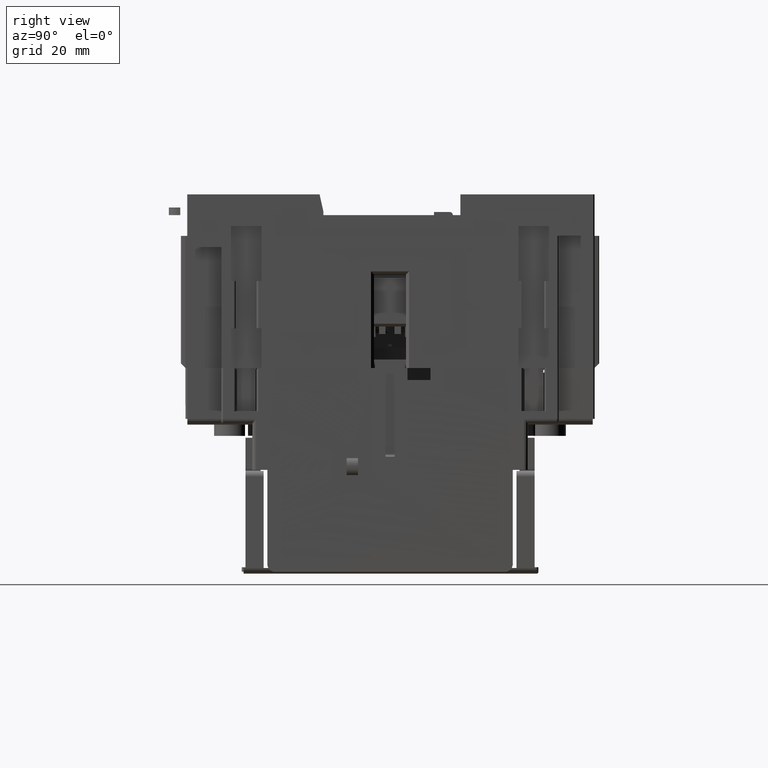
[diagram: clean part render]
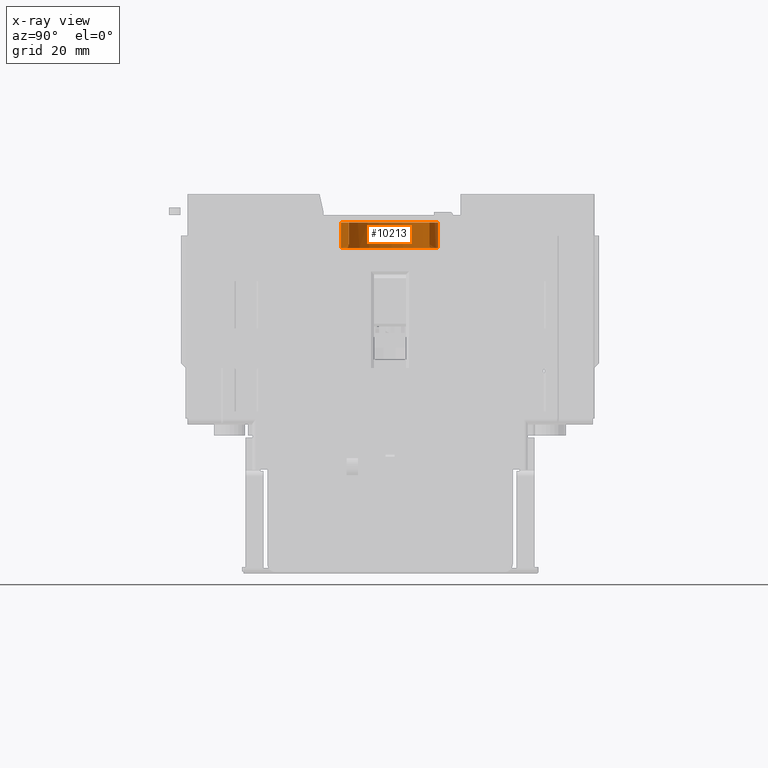
[diagram: x-ray — body ghosted, one internal face saturated and labeled with its STEP entity id]
A machine part, right view, then the same camera in x-ray: the body is ghosted and one INTERNAL B-rep face — a face not visible from any outside direction — is saturated and labeled: STEP entity #10213.
In plain terms, the highlighted cylindrical surface (partial cylindrical patch) has radius 12.924 mm, axis along (0, 0, 1).
Its self-contained STEP definition (entity closure, byte-faithful):
#4544=CARTESIAN_POINT('',(1.015357243668E2,4.144211797630E2,-2.200392864144E1));
#4545=DIRECTION('',(0.E0,0.E0,1.E0));
#4546=DIRECTION('',(5.797465627216E-1,8.147968599672E-1,0.E0));
#4547=AXIS2_PLACEMENT_3D('',#4544,#4545,#4546);
#4549=CARTESIAN_POINT('',(1.015357243668E2,4.144211797630E2,-2.200392864144E1));
#4550=DIRECTION('',(0.E0,0.E0,1.E0));
#4551=DIRECTION('',(-5.502016192554E-1,8.350318426077E-1,0.E0));
#4552=AXIS2_PLACEMENT_3D('',#4549,#4550,#4551);
#4880=CARTESIAN_POINT('',(1.015357243668E2,4.144211797630E2,-2.874944934997E1));
#4881=DIRECTION('',(0.E0,0.E0,-1.E0));
#4882=DIRECTION('',(4.839255634969E-1,-8.751091640443E-1,0.E0));
#4883=AXIS2_PLACEMENT_3D('',#4880,#4881,#4882);
#4885=CARTESIAN_POINT('',(1.015357243668E2,4.144211797630E2,-2.874944934997E1));
#4886=DIRECTION('',(0.E0,0.E0,-1.E0));
#4887=DIRECTION('',(-5.502016192553E-1,8.350318426077E-1,0.E0));
#4888=AXIS2_PLACEMENT_3D('',#4885,#4886,#4887);
#4890=CARTESIAN_POINT('',(1.086465298677E2,4.036292285727E2,-2.774944934997E1));
#4891=CARTESIAN_POINT('',(1.086465298677E2,4.036292285727E2,-2.785375672118E1));
#4892=CARTESIAN_POINT('',(1.086185243328E2,4.036107024340E2,-2.806317932093E1));
#4893=CARTESIAN_POINT('',(1.085003391058E2,4.035337414513E2,-2.834433652879E1));
#4894=CARTESIAN_POINT('',(1.083001985189E2,4.034078665311E2,-2.857890995005E1));
#4895=CARTESIAN_POINT('',(1.080598552135E2,4.032633587176E2,-2.871711960617E1));
#4896=CARTESIAN_POINT('',(1.078798868726E2,4.031609981562E2,-2.874944934997E1));
#4897=CARTESIAN_POINT('',(1.077900400339E2,4.031113138768E2,-2.874944934997E1));
#4908=CARTESIAN_POINT('',(1.090283687049E2,4.249516140460E2,-2.774944934997E1));
#4909=CARTESIAN_POINT('',(1.090283687049E2,4.249516140460E2,-2.788956115094E1));
#4910=CARTESIAN_POINT('',(1.089835131301E2,4.249837039180E2,-2.814540968772E1));
#4911=CARTESIAN_POINT('',(1.088028452488E2,4.251097330914E2,-2.847578781405E1));
#4912=CARTESIAN_POINT('',(1.085274608800E2,4.252926399869E2,-2.869480100926E1));
#4913=CARTESIAN_POINT('',(1.083105332403E2,4.254280449515E2,-2.874948075902E1));
#4914=CARTESIAN_POINT('',(1.081905886568E2,4.255000930585E2,-2.874944933868E1));
#4924=DIRECTION('',(-4.748889167292E-12,6.203236474775E-12,-1.E0));
#4925=VECTOR('',#4924,5.745520708530E0);
#4926=CARTESIAN_POINT('',(1.086465298677E2,4.036292285727E2,-2.200392864144E1));
#4927=LINE('',#4926,#4925);
#4932=DIRECTION('',(-2.609415662236E-12,1.899555666917E-12,1.E0));
#4933=VECTOR('',#4932,5.745520708530E0);
#4934=CARTESIAN_POINT('',(1.090283687049E2,4.249516140460E2,-2.774944934997E1));
#4935=LINE('',#4934,#4933);
#6631=CARTESIAN_POINT('',(1.090283687049E2,4.249516140460E2,-2.200392864144E1));
#6632=VERTEX_POINT('',#6631);
#6633=CARTESIAN_POINT('',(9.442491886591E1,4.252131309533E2,-2.200392864144E1));
#6634=VERTEX_POINT('',#6633);
#6635=CARTESIAN_POINT('',(1.086465298677E2,4.036292285727E2,-2.200392864144E1));
#6636=VERTEX_POINT('',#6635);
#6657=CARTESIAN_POINT('',(1.090283687049E2,4.249516140460E2,-2.774944934997E1));
#6658=VERTEX_POINT('',#6657);
#6659=CARTESIAN_POINT('',(1.081905886568E2,4.255000930585E2,-2.874944933868E1));
#6660=VERTEX_POINT('',#6659);
#6663=CARTESIAN_POINT('',(1.077900400339E2,4.031113138768E2,-2.874944934997E1));
#6664=VERTEX_POINT('',#6663);
#6665=CARTESIAN_POINT('',(9.442491886591E1,4.252131309533E2,-2.874944934997E1));
#6666=VERTEX_POINT('',#6665);
#6667=CARTESIAN_POINT('',(1.086465298677E2,4.036292285727E2,-2.774944934997E1));
#6668=VERTEX_POINT('',#6667);
#10196=CARTESIAN_POINT('',(1.015357243668E2,4.144211797630E2,
-2.899273360604E1));
#10197=DIRECTION('',(0.E0,0.E0,1.E0));
#10198=DIRECTION('',(5.502016192562E-1,-8.350318426071E-1,0.E0));
#10199=AXIS2_PLACEMENT_3D('',#10196,#10197,#10198);
#10200=CYLINDRICAL_SURFACE('',#10199,1.292399958857E1);
#10201=ORIENTED_EDGE('',*,*,#10158,.T.);
#10202=ORIENTED_EDGE('',*,*,#10177,.F.);
#10203=ORIENTED_EDGE('',*,*,#10175,.F.);
#10204=ORIENTED_EDGE('',*,*,#10187,.F.);
#10206=ORIENTED_EDGE('',*,*,#10205,.F.);
#10207=ORIENTED_EDGE('',*,*,#9757,.F.);
#10208=ORIENTED_EDGE('',*,*,#9755,.F.);
#10210=ORIENTED_EDGE('',*,*,#10209,.F.);
#10211=EDGE_LOOP('',(#10201,#10202,#10203,#10204,#10206,#10207,#10208,#10210));
#10212=FACE_OUTER_BOUND('',#10211,.F.);
#10213=ADVANCED_FACE('',(#10212),#10200,.F.);
#4548=CIRCLE('',#4547,1.292399958857E1);
#4553=CIRCLE('',#4552,1.292399958857E1);
#4884=CIRCLE('',#4883,1.292399958857E1);
#4889=CIRCLE('',#4888,1.292399958857E1);
#4898=B_SPLINE_CURVE_WITH_KNOTS('',3,(#4890,#4891,#4892,#4893,#4894,#4895,#4896,
#4897),.UNSPECIFIED.,.F.,.F.,(4,1,1,1,1,4),(0.E0,2.E-1,4.E-1,6.E-1,8.E-1,1.E0),
.UNSPECIFIED.);
#4915=B_SPLINE_CURVE_WITH_KNOTS('',3,(#4908,#4909,#4910,#4911,#4912,#4913,
#4914),.UNSPECIFIED.,.F.,.F.,(4,1,1,1,4),(0.E0,2.5E-1,5.E-1,7.5E-1,1.E0),
.UNSPECIFIED.);
#9755=EDGE_CURVE('',#6632,#6634,#4548,.T.);
#9757=EDGE_CURVE('',#6634,#6636,#4553,.T.);
#10158=EDGE_CURVE('',#6658,#6660,#4915,.T.);
#10175=EDGE_CURVE('',#6664,#6666,#4884,.T.);
#10177=EDGE_CURVE('',#6666,#6660,#4889,.T.);
#10187=EDGE_CURVE('',#6668,#6664,#4898,.T.);
#10205=EDGE_CURVE('',#6636,#6668,#4927,.T.);
#10209=EDGE_CURVE('',#6658,#6632,#4935,.T.);